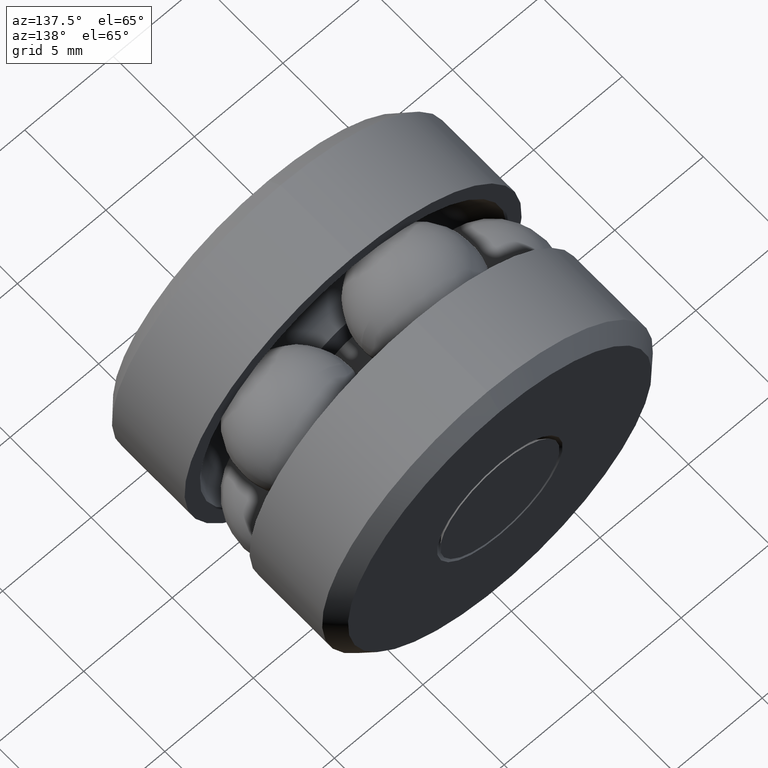
[diagram: clean part render]
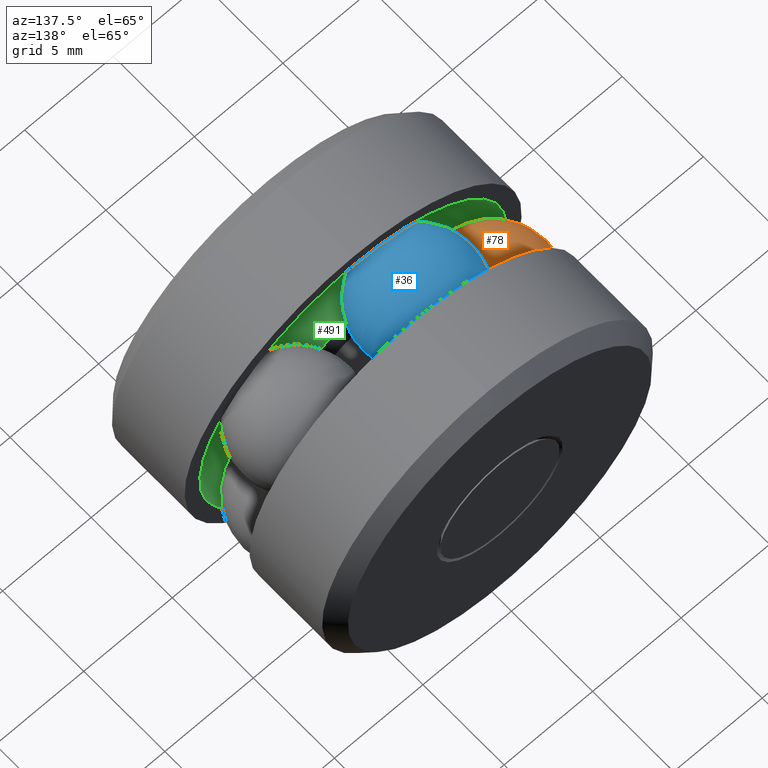
[diagram: same view with three faces highlighted in distinct colors, each labeled with its STEP entity id]
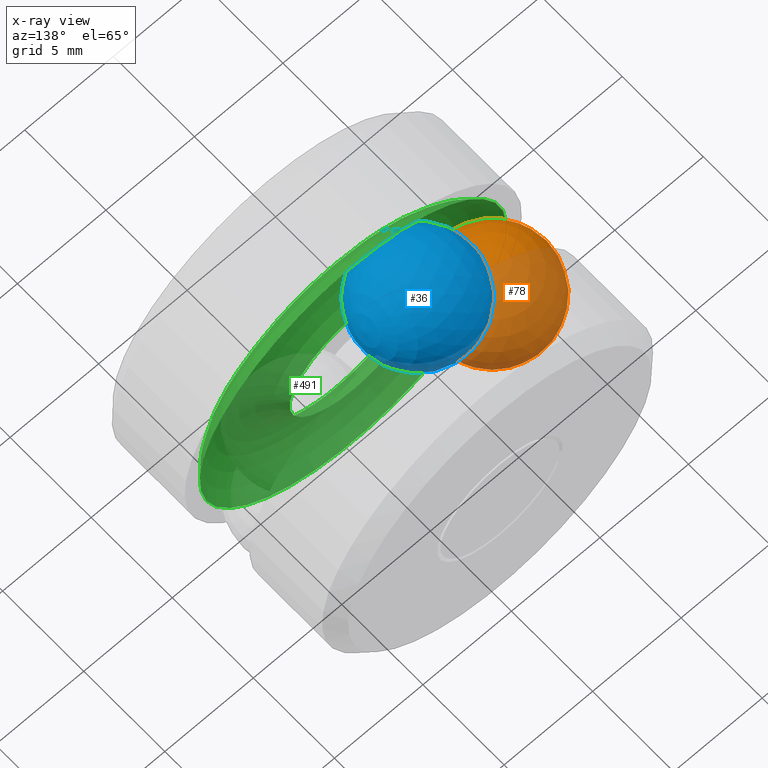
[diagram: x-ray of the same camera — body ghosted, the three highlighted faces saturated]
A machine part, auxiliary view with three faces highlighted in distinct colors.
The next image is the same camera in x-ray (body ghosted, the three faces saturated) — at least one of them is partly hidden behind the body in this view.
Their STEP definitions:

[orange] entity #78 — the highlighted spherical surface has radius 3.175 mm.
#46 = DIRECTION ( 'NONE',  ( 0.0000000000000000000, 0.0000000000000000000, -1.000000000000000000 ) ) ;
#78 = ADVANCED_FACE ( 'NONE', ( ), #239, .T. ) ;
#135 = DIRECTION ( 'NONE',  ( 1.000000000000000000, 0.0000000000000000000, 0.0000000000000000000 ) ) ;
#152 = CARTESIAN_POINT ( 'NONE',  ( -0.2409999999999999600, 0.2812500000000000600, 0.0000000000000000000 ) ) ;
#239 = SPHERICAL_SURFACE ( 'NONE', #281, 0.1250000000000000300 ) ;
#281 = AXIS2_PLACEMENT_3D ( 'NONE', #152, #46, #135 ) ;

[blue] entity #36 — the highlighted spherical surface has radius 3.175 mm.
#13 = SPHERICAL_SURFACE ( 'NONE', #169, 0.1250000000000000300 ) ;
#36 = ADVANCED_FACE ( 'NONE', ( ), #13, .T. ) ;
#169 = AXIS2_PLACEMENT_3D ( 'NONE', #175, #300, #429 ) ;
#175 = CARTESIAN_POINT ( 'NONE',  ( -0.07447309564436169200, 0.2812500000000000600, 0.2292046204271322400 ) ) ;
#300 = DIRECTION ( 'NONE',  ( -0.9510565162951544200, 0.0000000000000000000, -0.3090169943749446800 ) ) ;
#429 = DIRECTION ( 'NONE',  ( 0.3090169943749447300, 0.0000000000000000000, -0.9510565162951545300 ) ) ;

[green] entity #491 — the highlighted toroidal blend (fillet) surface has major radius 6.1214 mm and minor (blend) radius 3.175 mm.
#14 = AXIS2_PLACEMENT_3D ( 'NONE', #277, #71, #158 ) ;
#31 = CARTESIAN_POINT ( 'NONE',  ( 0.0000000000000000000, 0.2062500000000001600, 0.1409999999999998500 ) ) ;
#71 = DIRECTION ( 'NONE',  ( -0.0000000000000000000, 1.000000000000000000, -0.0000000000000000000 ) ) ;
#98 = CIRCLE ( 'NONE', #14, 0.1409999999999998500 ) ;
#157 = DIRECTION ( 'NONE',  ( -0.0000000000000000000, 1.000000000000000000, -0.0000000000000000000 ) ) ;
#158 = DIRECTION ( 'NONE',  ( 0.0000000000000000000, 0.0000000000000000000, 1.000000000000000000 ) ) ;
#174 = EDGE_LOOP ( 'NONE', ( #241 ) ) ;
#177 = EDGE_CURVE ( 'NONE', #353, #353, #98, .T. ) ;
#179 = TOROIDAL_SURFACE ( 'NONE', #278, 0.2409999999999999600, 0.1250000000000000300 ) ;
#204 = EDGE_CURVE ( 'NONE', #237, #237, #494, .T. ) ;
#229 = EDGE_LOOP ( 'NONE', ( #504 ) ) ;
#237 = VERTEX_POINT ( 'NONE', #370 ) ;
#241 = ORIENTED_EDGE ( 'NONE', *, *, #204, .T. ) ;
#249 = AXIS2_PLACEMENT_3D ( 'NONE', #527, #157, #449 ) ;
#277 = CARTESIAN_POINT ( 'NONE',  ( 0.0000000000000000000, 0.2062500000000001600, 0.0000000000000000000 ) ) ;
#278 = AXIS2_PLACEMENT_3D ( 'NONE', #473, #420, #426 ) ;
#293 = FACE_OUTER_BOUND ( 'NONE', #174, .T. ) ;
#353 = VERTEX_POINT ( 'NONE', #31 ) ;
#370 = CARTESIAN_POINT ( 'NONE',  ( 0.0000000000000000000, 0.2062500000000001000, 0.3410000000000000800 ) ) ;
#420 = DIRECTION ( 'NONE',  ( -0.0000000000000000000, 1.000000000000000000, -0.0000000000000000000 ) ) ;
#426 = DIRECTION ( 'NONE',  ( 0.0000000000000000000, 0.0000000000000000000, 1.000000000000000000 ) ) ;
#449 = DIRECTION ( 'NONE',  ( 0.0000000000000000000, 0.0000000000000000000, 1.000000000000000000 ) ) ;
#473 = CARTESIAN_POINT ( 'NONE',  ( 0.0000000000000000000, 0.2812500000000000000, 0.0000000000000000000 ) ) ;
#491 = ADVANCED_FACE ( 'NONE', ( #293, #509 ), #179, .F. ) ;
#494 = CIRCLE ( 'NONE', #249, 0.3410000000000000800 ) ;
#504 = ORIENTED_EDGE ( 'NONE', *, *, #177, .F. ) ;
#509 = FACE_OUTER_BOUND ( 'NONE', #229, .T. ) ;
#527 = CARTESIAN_POINT ( 'NONE',  ( 0.0000000000000000000, 0.2062500000000001000, 0.0000000000000000000 ) ) ;